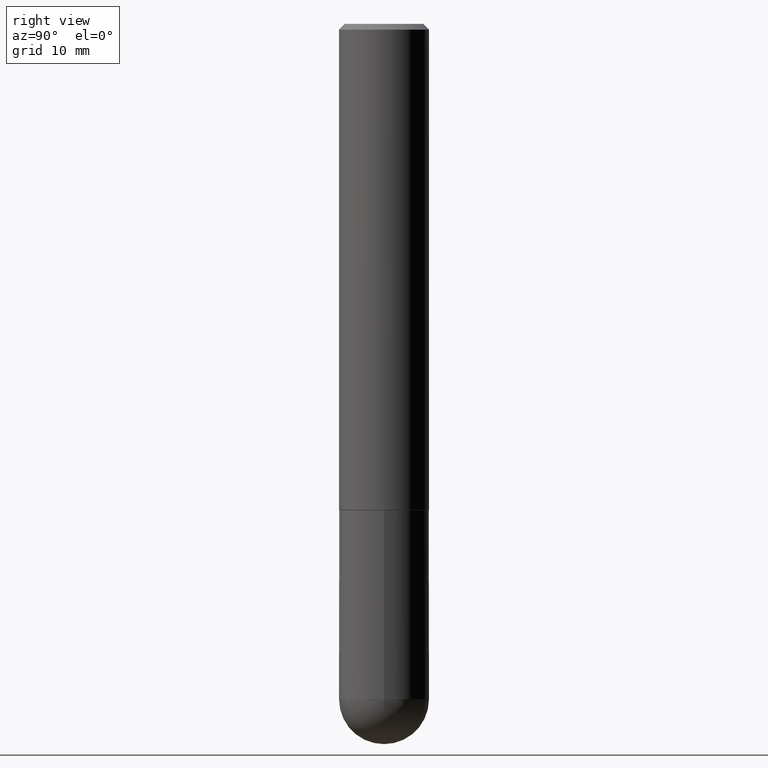
[diagram: clean part render]
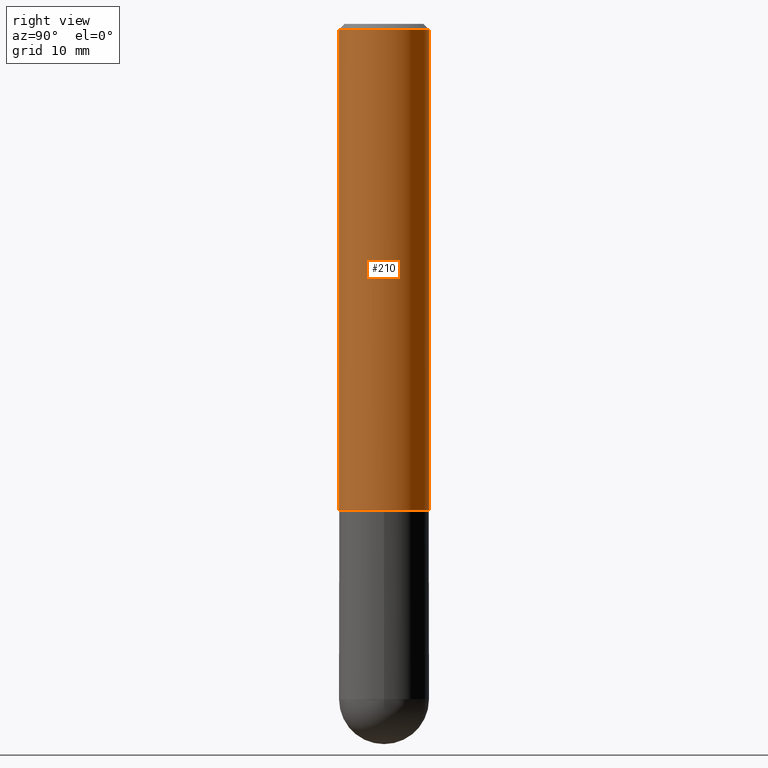
[diagram: same view with one face highlighted and labeled with its STEP entity id]
A machine part, right view. The second image highlights one B-rep face of the part: STEP entity #210.
In plain terms, the highlighted cylindrical surface (partial cylindrical patch) has radius 3.9688 mm, axis along (-0, 0, 1).
Its self-contained STEP definition (entity closure, byte-faithful):
#1 = LINE ( 'NONE', #68, #19 ) ;
#19 = VECTOR ( 'NONE', #241, 39.37007874015748143 ) ;
#27 = VERTEX_POINT ( 'NONE', #189 ) ;
#32 = CARTESIAN_POINT ( 'NONE',  ( -1.091087918388479765E-15, -0.1562500000000001110, 5.454067469963343169E-16 ) ) ;
#36 = EDGE_LOOP ( 'NONE', ( #219, #139, #347, #51 ) ) ;
#40 = AXIS2_PLACEMENT_3D ( 'NONE', #204, #331, #132 ) ;
#42 = DIRECTION ( 'NONE',  ( -2.446082020685560042E-29, 3.490603180776537498E-15, 1.000000000000000000 ) ) ;
#51 = ORIENTED_EDGE ( 'NONE', *, *, #111, .F. ) ;
#68 = CARTESIAN_POINT ( 'NONE',  ( 1.110223024625157132E-15, 0.1562500000000001110, -5.454067469963343169E-16 ) ) ;
#71 = EDGE_CURVE ( 'NONE', #97, #402, #353, .T. ) ;
#76 = CARTESIAN_POINT ( 'NONE',  ( 0.000000000000000000, 0.000000000000000000, 0.000000000000000000 ) ) ;
#91 = CARTESIAN_POINT ( 'NONE',  ( 1.091087918388479568E-15, 0.1562499999999999445, -0.02000000000000057981 ) ) ;
#94 = DIRECTION ( 'NONE',  ( -6.982962677686265133E-15, -1.000000000000000000, 3.496765431890256920E-15 ) ) ;
#96 = DIRECTION ( 'NONE',  ( -2.446082020685560042E-29, 3.490603180776537498E-15, 1.000000000000000000 ) ) ;
#97 = VERTEX_POINT ( 'NONE', #211 ) ;
#111 = EDGE_CURVE ( 'NONE', #97, #27, #339, .T. ) ;
#114 = AXIS2_PLACEMENT_3D ( 'NONE', #334, #233, #94 ) ;
#132 = DIRECTION ( 'NONE',  ( -6.982962677686265922E-15, -1.000000000000000000, 3.496765431890251792E-15 ) ) ;
#135 = VERTEX_POINT ( 'NONE', #91 ) ;
#139 = ORIENTED_EDGE ( 'NONE', *, *, #286, .T. ) ;
#177 = DIRECTION ( 'NONE',  ( -6.982962677686265922E-15, -1.000000000000000000, 3.490603180776537104E-15 ) ) ;
#189 = CARTESIAN_POINT ( 'NONE',  ( -1.071952812151801215E-15, -0.1562500000000000833, -0.01999999999999948694 ) ) ;
#204 = CARTESIAN_POINT ( 'NONE',  ( 4.126540368896540526E-29, -5.888647565970019255E-15, -1.687000000000000055 ) ) ;
#210 = ADVANCED_FACE ( 'NONE', ( #388 ), #312, .T. ) ;
#211 = CARTESIAN_POINT ( 'NONE',  ( -1.091087918388439336E-15, -0.1562500000000060785, -1.686999999999999611 ) ) ;
#219 = ORIENTED_EDGE ( 'NONE', *, *, #71, .T. ) ;
#233 = DIRECTION ( 'NONE',  ( -2.446082020685560042E-29, 3.490603180776537498E-15, 1.000000000000000000 ) ) ;
#238 = VECTOR ( 'NONE', #96, 39.37007874015748143 ) ;
#241 = DIRECTION ( 'NONE',  ( -2.446082020685560042E-29, 3.490603180776537498E-15, 1.000000000000000000 ) ) ;
#252 = EDGE_CURVE ( 'NONE', #27, #135, #302, .T. ) ;
#286 = EDGE_CURVE ( 'NONE', #402, #135, #1, .T. ) ;
#302 = CIRCLE ( 'NONE', #114, 0.1562500000000000000 ) ;
#312 = CYLINDRICAL_SURFACE ( 'NONE', #344, 0.1562500000000001110 ) ;
#331 = DIRECTION ( 'NONE',  ( -2.446082020685560042E-29, 3.490603180776537498E-15, 1.000000000000000000 ) ) ;
#334 = CARTESIAN_POINT ( 'NONE',  ( 4.892164041371128702E-31, -6.981206361553086139E-17, -0.02000000000000003511 ) ) ;
#339 = LINE ( 'NONE', #32, #238 ) ;
#344 = AXIS2_PLACEMENT_3D ( 'NONE', #76, #42, #177 ) ;
#347 = ORIENTED_EDGE ( 'NONE', *, *, #252, .F. ) ;
#353 = CIRCLE ( 'NONE', #40, 0.1562500000000002220 ) ;
#388 = FACE_OUTER_BOUND ( 'NONE', #36, .T. ) ;
#397 = CARTESIAN_POINT ( 'NONE',  ( 1.110223024625178431E-15, 0.1562499999999943379, -1.687000000000000499 ) ) ;
#402 = VERTEX_POINT ( 'NONE', #397 ) ;